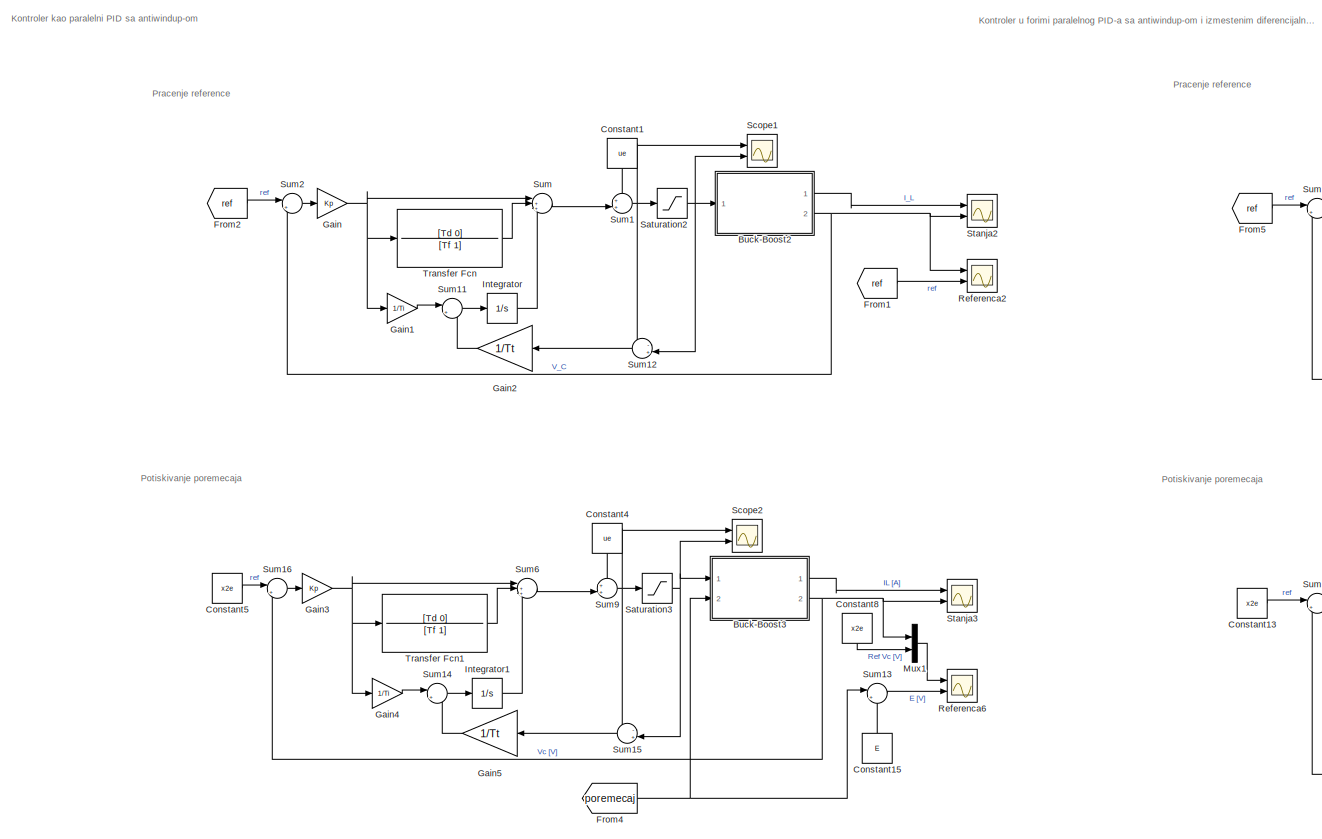
[diagram: root canvas - part 1/3, center side, full height]
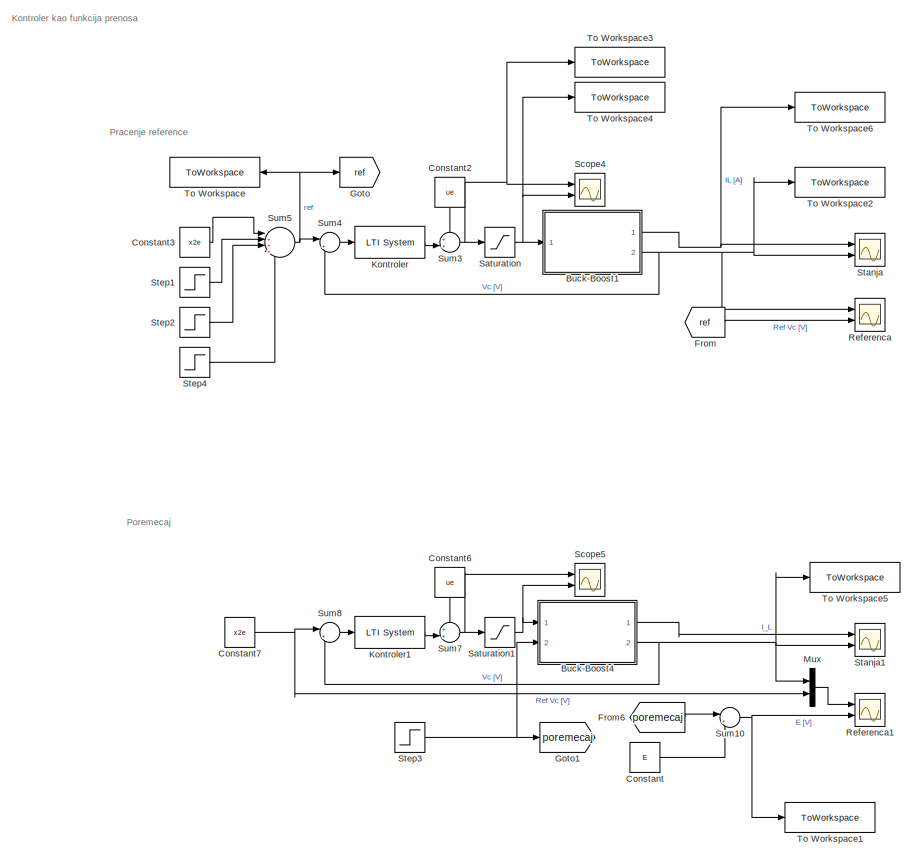
[diagram: root canvas - part 2/3, left side, full height]
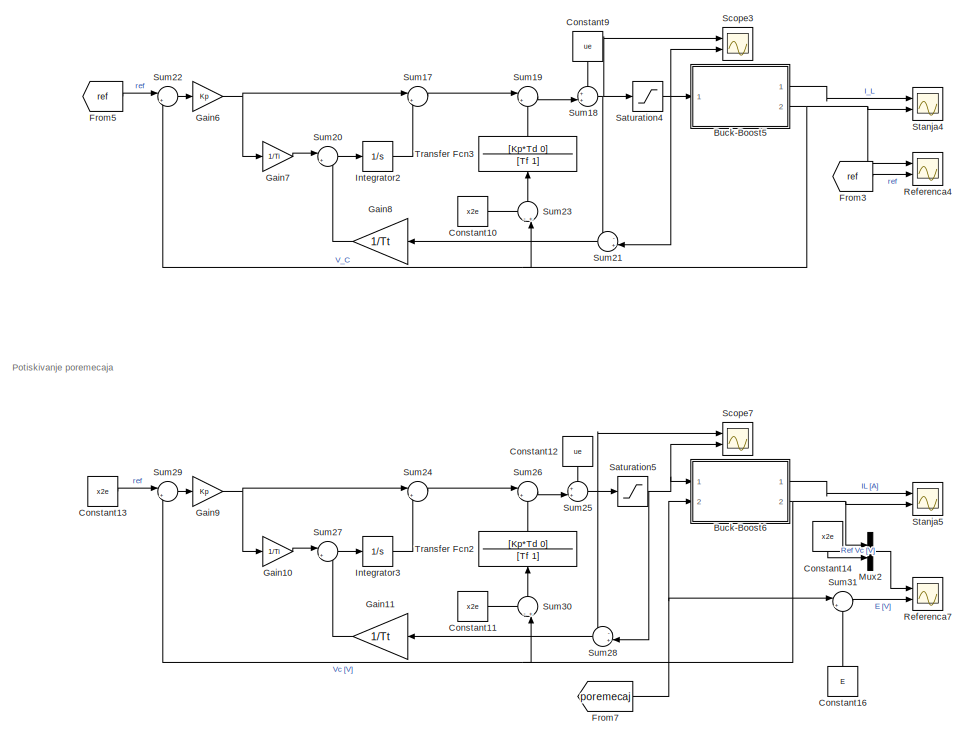
[diagram: root canvas - part 3/3, right side, full height]
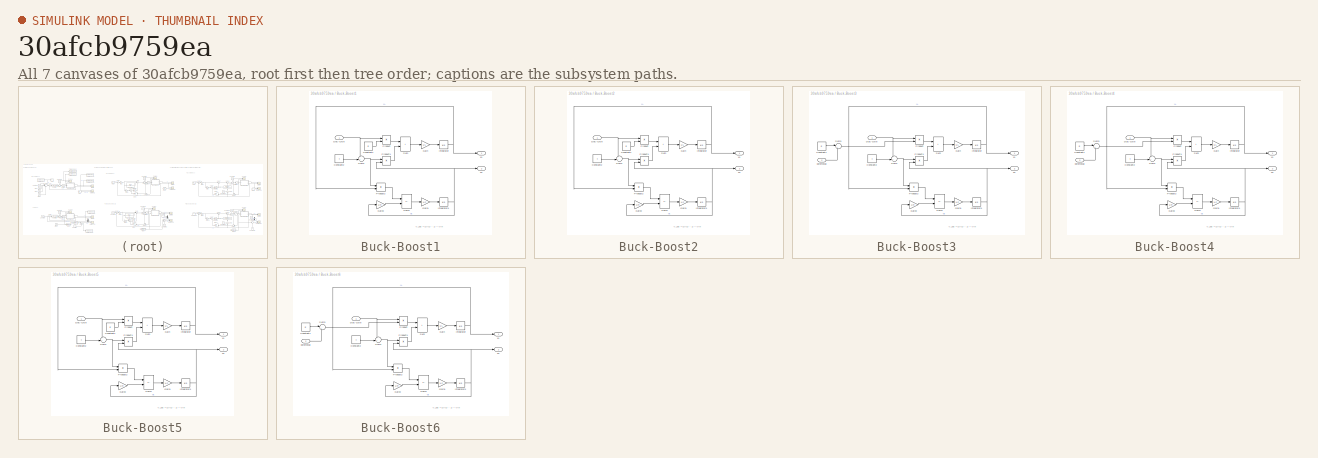
[diagram: thumbnail index - all 7 canvases of the model, root first then tree order]
MODEL slx_30afcb9759ea
KIND model
CONFIG AbsTol = auto
CONFIG EnableMultiTasking = off
CONFIG FixedStep = 1e-4
CONFIG MaxStep = auto
CONFIG MinStep = auto
CONFIG RelTol = 1e-3
CONFIG SampleTimeConstraint = Unconstrained
CONFIG Solver = FixedStepAuto
CONFIG SolverName = FixedStepAuto
CONFIG StartTime = 0.0
CONFIG StopTime = sim_duration
BLOCK [SubSystem] Buck-Boost1
  Ports = [1, 2]
  RequestExecContextInheritance = off
BLOCK [Constant] Buck-Boost1/Constant1
  Value = E
BLOCK [Constant] Buck-Boost1/Constant2
BLOCK [Inport] Buck-Boost1/Duty cycle
BLOCK [Gain] Buck-Boost1/Gain
  Gain = 1/L
BLOCK [Gain] Buck-Boost1/Gain1
  Gain = 1/C
BLOCK [Gain] Buck-Boost1/Gain2
  Gain = 1/R
BLOCK [Integrator] Buck-Boost1/Integrator
  Ports = [1, 1]
BLOCK [Integrator] Buck-Boost1/Integrator1
  Ports = [1, 1]
BLOCK [Product] Buck-Boost1/Product
  Ports = [2, 1]
BLOCK [Product] Buck-Boost1/Product1
  Ports = [2, 1]
BLOCK [Product] Buck-Boost1/Product2
  Ports = [2, 1]
BLOCK [Sum] Buck-Boost1/Sum
  IconShape = rectangular
  Ports = [2, 1]
BLOCK [Sum] Buck-Boost1/Sum1
  Inputs = -+|
  Ports = [2, 1]
BLOCK [Sum] Buck-Boost1/Sum2
  IconShape = rectangular
  Inputs = --
  Ports = [2, 1]
BLOCK [Outport] Buck-Boost1/x1
BLOCK [Outport] Buck-Boost1/x2
  Port = 2
BLOCK [SubSystem] Buck-Boost2
  Ports = [1, 2]
  RequestExecContextInheritance = off
BLOCK [Constant] Buck-Boost2/Constant1
  Value = E
BLOCK [Constant] Buck-Boost2/Constant2
BLOCK [Inport] Buck-Boost2/Duty cycle
BLOCK [Gain] Buck-Boost2/Gain
  Gain = 1/L
BLOCK [Gain] Buck-Boost2/Gain1
  Gain = 1/C
BLOCK [Gain] Buck-Boost2/Gain2
  Gain = 1/R
BLOCK [Integrator] Buck-Boost2/Integrator
  Ports = [1, 1]
BLOCK [Integrator] Buck-Boost2/Integrator1
  Ports = [1, 1]
BLOCK [Product] Buck-Boost2/Product
  Ports = [2, 1]
BLOCK [Product] Buck-Boost2/Product1
  Ports = [2, 1]
BLOCK [Product] Buck-Boost2/Product2
  Ports = [2, 1]
BLOCK [Sum] Buck-Boost2/Sum
  IconShape = rectangular
  Ports = [2, 1]
BLOCK [Sum] Buck-Boost2/Sum1
  Inputs = -+|
  Ports = [2, 1]
BLOCK [Sum] Buck-Boost2/Sum2
  IconShape = rectangular
  Inputs = --
  Ports = [2, 1]
BLOCK [Outport] Buck-Boost2/x1
BLOCK [Outport] Buck-Boost2/x2
  Port = 2
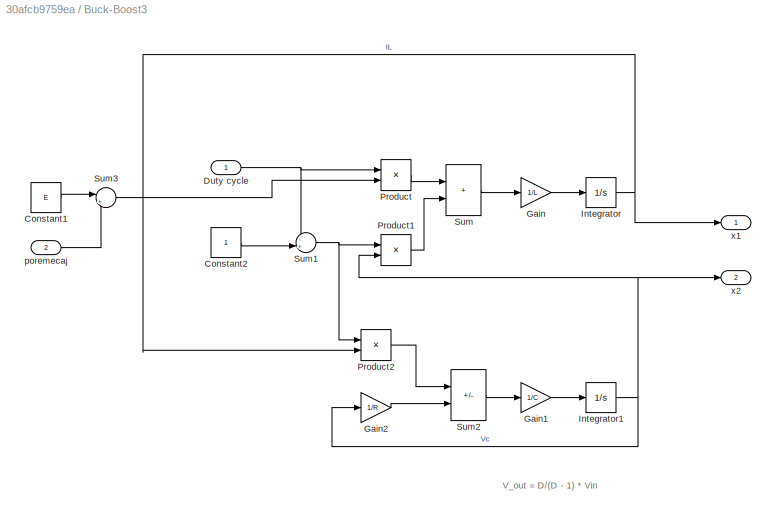
BLOCK [SubSystem] Buck-Boost3
  Ports = [2, 2]
  RequestExecContextInheritance = off
BLOCK [Constant] Buck-Boost3/Constant1
  Value = E
BLOCK [Constant] Buck-Boost3/Constant2
BLOCK [Inport] Buck-Boost3/Duty cycle
BLOCK [Gain] Buck-Boost3/Gain
  Gain = 1/L
BLOCK [Gain] Buck-Boost3/Gain1
  Gain = 1/C
BLOCK [Gain] Buck-Boost3/Gain2
  Gain = 1/R
BLOCK [Integrator] Buck-Boost3/Integrator
  Ports = [1, 1]
BLOCK [Integrator] Buck-Boost3/Integrator1
  Ports = [1, 1]
BLOCK [Product] Buck-Boost3/Product
  Ports = [2, 1]
BLOCK [Product] Buck-Boost3/Product1
  Ports = [2, 1]
BLOCK [Product] Buck-Boost3/Product2
  Ports = [2, 1]
BLOCK [Sum] Buck-Boost3/Sum
  IconShape = rectangular
  Ports = [2, 1]
BLOCK [Sum] Buck-Boost3/Sum1
  Inputs = -+|
  Ports = [2, 1]
BLOCK [Sum] Buck-Boost3/Sum2
  IconShape = rectangular
  Inputs = --
  Ports = [2, 1]
BLOCK [Sum] Buck-Boost3/Sum3
  Inputs = |++
  Ports = [2, 1]
BLOCK [Inport] Buck-Boost3/poremecaj
  Port = 2
BLOCK [Outport] Buck-Boost3/x1
BLOCK [Outport] Buck-Boost3/x2
  Port = 2
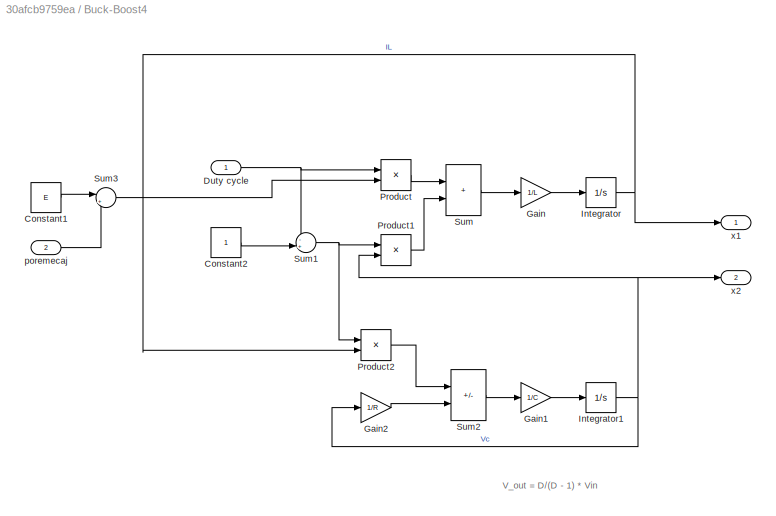
BLOCK [SubSystem] Buck-Boost4
  Ports = [2, 2]
  RequestExecContextInheritance = off
BLOCK [Constant] Buck-Boost4/Constant1
  Value = E
BLOCK [Constant] Buck-Boost4/Constant2
BLOCK [Inport] Buck-Boost4/Duty cycle
BLOCK [Gain] Buck-Boost4/Gain
  Gain = 1/L
BLOCK [Gain] Buck-Boost4/Gain1
  Gain = 1/C
BLOCK [Gain] Buck-Boost4/Gain2
  Gain = 1/R
BLOCK [Integrator] Buck-Boost4/Integrator
  Ports = [1, 1]
BLOCK [Integrator] Buck-Boost4/Integrator1
  Ports = [1, 1]
BLOCK [Product] Buck-Boost4/Product
  Ports = [2, 1]
BLOCK [Product] Buck-Boost4/Product1
  Ports = [2, 1]
BLOCK [Product] Buck-Boost4/Product2
  Ports = [2, 1]
BLOCK [Sum] Buck-Boost4/Sum
  IconShape = rectangular
  Ports = [2, 1]
BLOCK [Sum] Buck-Boost4/Sum1
  Inputs = -+|
  Ports = [2, 1]
BLOCK [Sum] Buck-Boost4/Sum2
  IconShape = rectangular
  Inputs = --
  Ports = [2, 1]
BLOCK [Sum] Buck-Boost4/Sum3
  Inputs = |++
  Ports = [2, 1]
BLOCK [Inport] Buck-Boost4/poremecaj
  Port = 2
BLOCK [Outport] Buck-Boost4/x1
BLOCK [Outport] Buck-Boost4/x2
  Port = 2
BLOCK [SubSystem] Buck-Boost5
  Ports = [1, 2]
  RequestExecContextInheritance = off
BLOCK [Constant] Buck-Boost5/Constant1
  Value = E
BLOCK [Constant] Buck-Boost5/Constant2
BLOCK [Inport] Buck-Boost5/Duty cycle
BLOCK [Gain] Buck-Boost5/Gain
  Gain = 1/L
BLOCK [Gain] Buck-Boost5/Gain1
  Gain = 1/C
BLOCK [Gain] Buck-Boost5/Gain2
  Gain = 1/R
BLOCK [Integrator] Buck-Boost5/Integrator
  Ports = [1, 1]
BLOCK [Integrator] Buck-Boost5/Integrator1
  Ports = [1, 1]
BLOCK [Product] Buck-Boost5/Product
  Ports = [2, 1]
BLOCK [Product] Buck-Boost5/Product1
  Ports = [2, 1]
BLOCK [Product] Buck-Boost5/Product2
  Ports = [2, 1]
BLOCK [Sum] Buck-Boost5/Sum
  IconShape = rectangular
  Ports = [2, 1]
BLOCK [Sum] Buck-Boost5/Sum1
  Inputs = -+|
  Ports = [2, 1]
BLOCK [Sum] Buck-Boost5/Sum2
  IconShape = rectangular
  Inputs = --
  Ports = [2, 1]
BLOCK [Outport] Buck-Boost5/x1
BLOCK [Outport] Buck-Boost5/x2
  Port = 2
BLOCK [SubSystem] Buck-Boost6
  Ports = [2, 2]
  RequestExecContextInheritance = off
BLOCK [Constant] Buck-Boost6/Constant1
  Value = E
BLOCK [Constant] Buck-Boost6/Constant2
BLOCK [Inport] Buck-Boost6/Duty cycle
BLOCK [Gain] Buck-Boost6/Gain
  Gain = 1/L
BLOCK [Gain] Buck-Boost6/Gain1
  Gain = 1/C
BLOCK [Gain] Buck-Boost6/Gain2
  Gain = 1/R
BLOCK [Integrator] Buck-Boost6/Integrator
  Ports = [1, 1]
BLOCK [Integrator] Buck-Boost6/Integrator1
  Ports = [1, 1]
BLOCK [Product] Buck-Boost6/Product
  Ports = [2, 1]
BLOCK [Product] Buck-Boost6/Product1
  Ports = [2, 1]
BLOCK [Product] Buck-Boost6/Product2
  Ports = [2, 1]
BLOCK [Sum] Buck-Boost6/Sum
  IconShape = rectangular
  Ports = [2, 1]
BLOCK [Sum] Buck-Boost6/Sum1
  Inputs = -+|
  Ports = [2, 1]
BLOCK [Sum] Buck-Boost6/Sum2
  IconShape = rectangular
  Inputs = --
  Ports = [2, 1]
BLOCK [Sum] Buck-Boost6/Sum3
  Inputs = |++
  Ports = [2, 1]
BLOCK [Inport] Buck-Boost6/poremecaj
  Port = 2
BLOCK [Outport] Buck-Boost6/x1
BLOCK [Outport] Buck-Boost6/x2
  Port = 2
BLOCK [Constant] Constant
  Value = E
BLOCK [Constant] Constant1
  NameLocation = left
  Value = ue
BLOCK [Constant] Constant10
  Value = x2e
BLOCK [Constant] Constant11
  Value = x2e
BLOCK [Constant] Constant12
  NameLocation = left
  Value = ue
BLOCK [Constant] Constant13
  Value = x2e
BLOCK [Constant] Constant14
  NameLocation = left
  Value = x2e
BLOCK [Constant] Constant15
  NameLocation = right
  Value = E
BLOCK [Constant] Constant16
  NameLocation = right
  Value = E
BLOCK [Constant] Constant2
  NameLocation = left
  Value = ue
BLOCK [Constant] Constant3
  Value = x2e
BLOCK [Constant] Constant4
  NameLocation = left
  Value = ue
BLOCK [Constant] Constant5
  Value = x2e
BLOCK [Constant] Constant6
  NameLocation = left
  Value = ue
BLOCK [Constant] Constant7
  Value = x2e
BLOCK [Constant] Constant8
  NameLocation = left
  Value = x2e
BLOCK [Constant] Constant9
  NameLocation = left
  Value = ue
BLOCK [From] From
  GotoTag = ref
BLOCK [From] From1
  GotoTag = ref
BLOCK [From] From2
  GotoTag = ref
BLOCK [From] From3
  GotoTag = ref
BLOCK [From] From4
  GotoTag = poremecaj
BLOCK [From] From5
  GotoTag = ref
BLOCK [From] From6
  GotoTag = poremecaj
BLOCK [From] From7
  GotoTag = poremecaj
BLOCK [Gain] Gain
  Gain = Kp
BLOCK [Gain] Gain1
  Gain = 1/Ti
BLOCK [Gain] Gain10
  Gain = 1/Ti
BLOCK [Gain] Gain11
  Gain = 1/Tt
  NameLocation = top
BLOCK [Gain] Gain2
  Gain = 1/Tt
  NameLocation = top
BLOCK [Gain] Gain3
  Gain = Kp
BLOCK [Gain] Gain4
  Gain = 1/Ti
BLOCK [Gain] Gain5
  Gain = 1/Tt
  NameLocation = top
BLOCK [Gain] Gain6
  Gain = Kp
BLOCK [Gain] Gain7
  Gain = 1/Ti
BLOCK [Gain] Gain8
  Gain = 1/Tt
  NameLocation = top
BLOCK [Gain] Gain9
  Gain = Kp
BLOCK [Goto] Goto
  GotoTag = ref
BLOCK [Goto] Goto1
  GotoTag = poremecaj
BLOCK [Integrator] Integrator
  Ports = [1, 1]
BLOCK [Integrator] Integrator1
  Ports = [1, 1]
BLOCK [Integrator] Integrator2
  Ports = [1, 1]
BLOCK [Integrator] Integrator3
  Ports = [1, 1]
BLOCK [Reference] Kontroler  REF=cstblocks/LTI System
  Ports = [1, 1]
  SourceBlock = cstblocks/LTI System
  SourceProductBaseCode = CT
  SourceType = LTI Block
BLOCK [Reference] Kontroler1  REF=cstblocks/LTI System
  Ports = [1, 1]
  SourceBlock = cstblocks/LTI System
  SourceProductBaseCode = CT
  SourceType = LTI Block
BLOCK [Mux] Mux
  DisplayOption = bar
  Inputs = 2
  Ports = [2, 1]
BLOCK [Mux] Mux1
  DisplayOption = bar
  Inputs = 2
  Ports = [2, 1]
BLOCK [Mux] Mux2
  DisplayOption = bar
  Inputs = 2
  Ports = [2, 1]
BLOCK [Scope] Referenca
  Floating = off
  NumInputPorts = 2
  Ports = [2]
  ScopeSpecificationString = Simulink.scopes.TimeScopeBlockCfg('CurrentConfiguration', extmgr.ConfigurationSet(extmgr.Configuration('Core','General UI',true),extmgr.Configuration('Core','Source UI',true),extmgr.Configuration('Sources','WiredSimulink',true,'DataLoggingVariableName','ScopeData2'),extmgr.Configuration('Visuals','Time Domain',true,'SerializedDisplays',{struct('MinYLimReal','-26.57813','MaxYLimReal','2.95312','YLa...<+1457ch>
BLOCK [Scope] Referenca1
  Floating = off
  NumInputPorts = 2
  Ports = [2]
  ScopeSpecificationString = Simulink.scopes.TimeScopeBlockCfg('CurrentConfiguration', extmgr.ConfigurationSet(extmgr.Configuration('Core','General UI',true),extmgr.Configuration('Core','Source UI',true),extmgr.Configuration('Sources','WiredSimulink',true,'DataLoggingVariableName','ScopeData1'),extmgr.Configuration('Visuals','Time Domain',true,'SerializedDisplays',{struct('MinYLimReal','-25.3125','MaxYLimReal','2.8125','YLabe...<+2094ch>
BLOCK [Scope] Referenca2
  Floating = off
  NumInputPorts = 2
  Ports = [2]
  ScopeSpecificationString = Simulink.scopes.TimeScopeBlockCfg('CurrentConfiguration', extmgr.ConfigurationSet(extmgr.Configuration('Core','General UI',true),extmgr.Configuration('Core','Source UI',true),extmgr.Configuration('Sources','WiredSimulink',true,'DataLoggingVariableName','ScopeData1'),extmgr.Configuration('Visuals','Time Domain',true,'SerializedDisplays',{struct('MinYLimReal','-26.93518','MaxYLimReal','2.9928','YLab...<+1445ch>
BLOCK [Scope] Referenca4
  Floating = off
  NumInputPorts = 2
  Ports = [2]
  ScopeSpecificationString = Simulink.scopes.TimeScopeBlockCfg('CurrentConfiguration', extmgr.ConfigurationSet(extmgr.Configuration('Core','General UI',true),extmgr.Configuration('Core','Source UI',true),extmgr.Configuration('Sources','WiredSimulink',true,'DataLoggingVariableName','ScopeData1'),extmgr.Configuration('Visuals','Time Domain',true,'SerializedDisplays',{struct('MinYLimReal','-30.37718','MaxYLimReal','3.37524','YLa...<+1450ch>
BLOCK [Scope] Referenca6
  Floating = off
  NumInputPorts = 2
  Ports = [2]
  ScopeSpecificationString = Simulink.scopes.TimeScopeBlockCfg('CurrentConfiguration', extmgr.ConfigurationSet(extmgr.Configuration('Core','General UI',true),extmgr.Configuration('Core','Source UI',true),extmgr.Configuration('Sources','WiredSimulink',true,'DataLoggingVariableName','ScopeData1'),extmgr.Configuration('Visuals','Time Domain',true,'SerializedDisplays',{struct('MinYLimReal','-57.38007','MaxYLimReal','6.37556','YLa...<+2087ch>
BLOCK [Scope] Referenca7
  Floating = off
  NumInputPorts = 2
  Ports = [2]
  ScopeSpecificationString = Simulink.scopes.TimeScopeBlockCfg('CurrentConfiguration', extmgr.ConfigurationSet(extmgr.Configuration('Core','General UI',true),extmgr.Configuration('Core','Source UI',true),extmgr.Configuration('Sources','WiredSimulink',true,'DataLoggingVariableName','ScopeData2'),extmgr.Configuration('Visuals','Time Domain',true,'SerializedDisplays',{struct('MinYLimReal','-57.38007','MaxYLimReal','6.37556','YLa...<+2087ch>
BLOCK [Saturate] Saturation
  LowerLimit = 0
  UpperLimit = 1
BLOCK [Saturate] Saturation1
  LowerLimit = 0
  UpperLimit = 1
BLOCK [Saturate] Saturation2
  LowerLimit = 0
  UpperLimit = 1
BLOCK [Saturate] Saturation3
  LowerLimit = 0
  UpperLimit = 1
BLOCK [Saturate] Saturation4
  LowerLimit = 0
  UpperLimit = 1
BLOCK [Saturate] Saturation5
  LowerLimit = 0
  UpperLimit = 1
BLOCK [Scope] Scope1
  Floating = off
  NumInputPorts = 2
  Ports = [2]
  ScopeSpecificationString = Simulink.scopes.TimeScopeBlockCfg('CurrentConfiguration', extmgr.ConfigurationSet(extmgr.Configuration('Core','General UI',true),extmgr.Configuration('Core','Source UI',true),extmgr.Configuration('Sources','WiredSimulink',true,'DataLoggingVariableName','ScopeData2'),extmgr.Configuration('Visuals','Time Domain',true,'SerializedDisplays',{struct('MinYLimReal','-0.01389','MaxYLimReal','3.9001','YLabe...<+1417ch>
BLOCK [Scope] Scope2
  Floating = off
  NumInputPorts = 2
  Ports = [2]
  ScopeSpecificationString = Simulink.scopes.TimeScopeBlockCfg('CurrentConfiguration', extmgr.ConfigurationSet(extmgr.Configuration('Core','General UI',true),extmgr.Configuration('Core','Source UI',true),extmgr.Configuration('Sources','WiredSimulink',true,'DataLoggingVariableName','ScopeData5'),extmgr.Configuration('Visuals','Time Domain',true,'SerializedDisplays',{struct('MinYLimReal','-22.31565','MaxYLimReal','195.08207','Y...<+1431ch>
BLOCK [Scope] Scope3
  Floating = off
  NumInputPorts = 2
  Ports = [2]
  ScopeSpecificationString = Simulink.scopes.TimeScopeBlockCfg('CurrentConfiguration', extmgr.ConfigurationSet(extmgr.Configuration('Core','General UI',true),extmgr.Configuration('Core','Source UI',true),extmgr.Configuration('Sources','WiredSimulink',true,'DataLoggingVariableName','ScopeData2'),extmgr.Configuration('Visuals','Time Domain',true,'SerializedDisplays',{struct('MinYLimReal','-0.00108','MaxYLimReal','2.15647','YLab...<+1422ch>
BLOCK [Scope] Scope4
  Floating = off
  NumInputPorts = 2
  Ports = [2]
  ScopeSpecificationString = Simulink.scopes.TimeScopeBlockCfg('CurrentConfiguration', extmgr.ConfigurationSet(extmgr.Configuration('Core','General UI',true),extmgr.Configuration('Core','Source UI',true),extmgr.Configuration('Sources','WiredSimulink',true,'DataLoggingVariableName','ScopeData3'),extmgr.Configuration('Visuals','Time Domain',true,'SerializedDisplays',{struct('MinYLimReal','-0.01389','MaxYLimReal','3.9001','YLabe...<+1416ch>
BLOCK [Scope] Scope5
  Floating = off
  NumInputPorts = 2
  Ports = [2]
  ScopeSpecificationString = Simulink.scopes.TimeScopeBlockCfg('CurrentConfiguration', extmgr.ConfigurationSet(extmgr.Configuration('Core','General UI',true),extmgr.Configuration('Core','Source UI',true),extmgr.Configuration('Sources','WiredSimulink',true,'DataLoggingVariableName','ScopeData2'),extmgr.Configuration('Visuals','Time Domain',true,'SerializedDisplays',{struct('MinYLimReal','0.5077','MaxYLimReal','0.77377','YLabel...<+1397ch>
BLOCK [Scope] Scope7
  Floating = off
  NumInputPorts = 2
  Ports = [2]
  ScopeSpecificationString = Simulink.scopes.TimeScopeBlockCfg('CurrentConfiguration', extmgr.ConfigurationSet(extmgr.Configuration('Core','General UI',true),extmgr.Configuration('Core','Source UI',true),extmgr.Configuration('Sources','WiredSimulink',true,'DataLoggingVariableName','ScopeData3'),extmgr.Configuration('Visuals','Time Domain',true,'SerializedDisplays',{struct('MinYLimReal','-0.00108','MaxYLimReal','2.15647','YLab...<+1422ch>
BLOCK [Scope] Stanja
  Floating = off
  NumInputPorts = 2
  Ports = [2]
  ScopeSpecificationString = Simulink.scopes.TimeScopeBlockCfg('CurrentConfiguration', extmgr.ConfigurationSet(extmgr.Configuration('Core','General UI',true),extmgr.Configuration('Core','Source UI',true),extmgr.Configuration('Sources','WiredSimulink',true,'DataLoggingVariableName','ScopeData1'),extmgr.Configuration('Visuals','Time Domain',true,'SerializedDisplays',{struct('MinYLimReal','-10.64085','MaxYLimReal','9.70726','YLa...<+1420ch>
BLOCK [Scope] Stanja1
  Floating = off
  NumInputPorts = 2
  Ports = [2]
  ScopeSpecificationString = Simulink.scopes.TimeScopeBlockCfg('CurrentConfiguration', extmgr.ConfigurationSet(extmgr.Configuration('Core','General UI',true),extmgr.Configuration('Core','Source UI',true),extmgr.Configuration('Sources','WiredSimulink',true,'DataLoggingVariableName','ScopeData3'),extmgr.Configuration('Visuals','Time Domain',true,'SerializedDisplays',{struct('MinYLimReal','-57.65482','MaxYLimReal','15.04043','YL...<+1416ch>
BLOCK [Scope] Stanja2
  Floating = off
  NumInputPorts = 2
  Ports = [2]
  ScopeSpecificationString = Simulink.scopes.TimeScopeBlockCfg('CurrentConfiguration', extmgr.ConfigurationSet(extmgr.Configuration('Core','General UI',true),extmgr.Configuration('Core','Source UI',true),extmgr.Configuration('Sources','WiredSimulink',true,'DataLoggingVariableName','ScopeData3'),extmgr.Configuration('Visuals','Time Domain',true,'SerializedDisplays',{struct('MinYLimReal','-56.97695','MaxYLimReal','14.85675','YL...<+1416ch>
BLOCK [Scope] Stanja3
  Floating = off
  NumInputPorts = 2
  Ports = [2]
  ScopeSpecificationString = Simulink.scopes.TimeScopeBlockCfg('CurrentConfiguration', extmgr.ConfigurationSet(extmgr.Configuration('Core','General UI',true),extmgr.Configuration('Core','Source UI',true),extmgr.Configuration('Sources','WiredSimulink',true,'DataLoggingVariableName','ScopeData6'),extmgr.Configuration('Visuals','Time Domain',true,'SerializedDisplays',{struct('MinYLimReal','-57.65482','MaxYLimReal','15.04043','YL...<+1416ch>
BLOCK [Scope] Stanja4
  Floating = off
  NumInputPorts = 2
  Ports = [2]
  ScopeSpecificationString = Simulink.scopes.TimeScopeBlockCfg('CurrentConfiguration', extmgr.ConfigurationSet(extmgr.Configuration('Core','General UI',true),extmgr.Configuration('Core','Source UI',true),extmgr.Configuration('Sources','WiredSimulink',true,'DataLoggingVariableName','ScopeData3'),extmgr.Configuration('Visuals','Time Domain',true,'SerializedDisplays',{struct('MinYLimReal','-56.97695','MaxYLimReal','14.85675','YL...<+1416ch>
BLOCK [Scope] Stanja5
  Floating = off
  NumInputPorts = 2
  Ports = [2]
  ScopeSpecificationString = Simulink.scopes.TimeScopeBlockCfg('CurrentConfiguration', extmgr.ConfigurationSet(extmgr.Configuration('Core','General UI',true),extmgr.Configuration('Core','Source UI',true),extmgr.Configuration('Sources','WiredSimulink',true,'DataLoggingVariableName','ScopeData4'),extmgr.Configuration('Visuals','Time Domain',true,'SerializedDisplays',{struct('MinYLimReal','-27.67625','MaxYLimReal','4.90223','YLa...<+1414ch>
BLOCK [Step] Step1
  After = amp_ref_stepdown1
  SampleTime = 0
  Time = t_ref_stepdown1
BLOCK [Step] Step2
  After = amp_ref_stepup1
  SampleTime = 0
  Time = t_ref_stepup1
BLOCK [Step] Step3
  After = amp_poremecaj
  SampleTime = 0
  Time = t_poremecaj
BLOCK [Step] Step4
  After = amp_ref_stepdown2
  SampleTime = 0
  Time = t_ref_stepdown2
BLOCK [Sum] Sum
  Inputs = |+++
  Ports = [3, 1]
BLOCK [Sum] Sum1
  Inputs = ++|
  Ports = [2, 1]
BLOCK [Sum] Sum10
  Inputs = |++
  Ports = [2, 1]
BLOCK [Sum] Sum11
  Inputs = |++
  Ports = [2, 1]
BLOCK [Sum] Sum12
  Inputs = -+|
  Ports = [2, 1]
BLOCK [Sum] Sum13
  Inputs = |++
  Ports = [2, 1]
BLOCK [Sum] Sum14
  Inputs = |++
  Ports = [2, 1]
BLOCK [Sum] Sum15
  Inputs = -+|
  Ports = [2, 1]
BLOCK [Sum] Sum16
  Inputs = |+-
  Ports = [2, 1]
BLOCK [Sum] Sum17
  Inputs = |++
  Ports = [2, 1]
BLOCK [Sum] Sum18
  Inputs = ++|
  Ports = [2, 1]
BLOCK [Sum] Sum19
  Inputs = |+-
  Ports = [2, 1]
BLOCK [Sum] Sum2
  Inputs = |+-
  Ports = [2, 1]
BLOCK [Sum] Sum20
  Inputs = |++
  Ports = [2, 1]
BLOCK [Sum] Sum21
  Inputs = -+|
  Ports = [2, 1]
BLOCK [Sum] Sum22
  Inputs = |+-
  Ports = [2, 1]
BLOCK [Sum] Sum23
  Inputs = -+|
  NameLocation = right
  Ports = [2, 1]
BLOCK [Sum] Sum24
  Inputs = |++
  Ports = [2, 1]
BLOCK [Sum] Sum25
  Inputs = ++|
  Ports = [2, 1]
BLOCK [Sum] Sum26
  Inputs = |+-
  Ports = [2, 1]
BLOCK [Sum] Sum27
  Inputs = |++
  Ports = [2, 1]
BLOCK [Sum] Sum28
  Inputs = -+|
  Ports = [2, 1]
BLOCK [Sum] Sum29
  Inputs = |+-
  Ports = [2, 1]
BLOCK [Sum] Sum3
  Inputs = ++|
  Ports = [2, 1]
BLOCK [Sum] Sum30
  Inputs = -+|
  NameLocation = right
  Ports = [2, 1]
BLOCK [Sum] Sum31
  Inputs = |++
  Ports = [2, 1]
BLOCK [Sum] Sum4
  Inputs = |+-
  Ports = [2, 1]
BLOCK [Sum] Sum5
  Inputs = |++++
  Ports = [4, 1]
BLOCK [Sum] Sum6
  Inputs = |+++
  Ports = [3, 1]
BLOCK [Sum] Sum7
  Inputs = ++|
  Ports = [2, 1]
BLOCK [Sum] Sum8
  Inputs = |+-
  Ports = [2, 1]
BLOCK [Sum] Sum9
  Inputs = ++|
  Ports = [2, 1]
BLOCK [ToWorkspace] To Workspace
  FixptAsFi = on
  MaxDataPoints = inf
  Ports = [1]
  SampleTime = -1
  SaveFormat = Timeseries
  VariableName = referenca
BLOCK [ToWorkspace] To Workspace1
  FixptAsFi = on
  MaxDataPoints = inf
  Ports = [1]
  SampleTime = -1
  SaveFormat = Timeseries
  VariableName = poremecaj
BLOCK [ToWorkspace] To Workspace2
  FixptAsFi = on
  MaxDataPoints = inf
  Ports = [1]
  SampleTime = -1
  SaveFormat = Timeseries
  VariableName = x2
BLOCK [ToWorkspace] To Workspace3
  FixptAsFi = on
  MaxDataPoints = inf
  Ports = [1]
  SampleTime = -1
  SaveFormat = Timeseries
  VariableName = u
BLOCK [ToWorkspace] To Workspace4
  FixptAsFi = on
  MaxDataPoints = inf
  Ports = [1]
  SampleTime = -1
  SaveFormat = Timeseries
  VariableName = u_sat
BLOCK [ToWorkspace] To Workspace5
  FixptAsFi = on
  MaxDataPoints = inf
  Ports = [1]
  SampleTime = -1
  SaveFormat = Timeseries
  VariableName = x2_poremecaj
BLOCK [ToWorkspace] To Workspace6
  FixptAsFi = on
  MaxDataPoints = inf
  Ports = [1]
  SampleTime = -1
  SaveFormat = Timeseries
  VariableName = x1
BLOCK [TransferFcn] Transfer Fcn
  Denominator = [Tf 1]
  Numerator = [Td 0]
BLOCK [TransferFcn] Transfer Fcn1
  Denominator = [Tf 1]
  Numerator = [Td 0]
BLOCK [TransferFcn] Transfer Fcn2
  Denominator = [Tf 1]
  NameLocation = right
  Numerator = [Kp*Td 0]
BLOCK [TransferFcn] Transfer Fcn3
  Denominator = [Tf 1]
  NameLocation = right
  Numerator = [Kp*Td 0]
ANNOTATION (root): Kontroler kao funkcija prenosa
ANNOTATION (root): Kontroler kao paralelni PID sa antiwindup-om
ANNOTATION (root): Kontroler u forimi paralelnog PID-a sa antiwindup-om i izmestenim diferencijalnim delovanjem
ANNOTATION (root): Poremecaj
ANNOTATION (root): Potiskivanje poremecaja
ANNOTATION (root): Pracenje reference
ANNOTATION Buck-Boost1: V_out = D/(D - 1) * Vin
ANNOTATION Buck-Boost2: V_out = D/(D - 1) * Vin
ANNOTATION Buck-Boost3: V_out = D/(D - 1) * Vin
ANNOTATION Buck-Boost4: V_out = D/(D - 1) * Vin
ANNOTATION Buck-Boost5: V_out = D/(D - 1) * Vin
ANNOTATION Buck-Boost6: V_out = D/(D - 1) * Vin
LINE Buck-Boost1/Constant1:1 -> Buck-Boost1/Product:2
LINE Buck-Boost1/Constant2:1 -> Buck-Boost1/Sum1:2
NET Buck-Boost1/Duty cycle:1 -> Buck-Boost1/Product:1, Buck-Boost1/Sum1:1
LINE Buck-Boost1/Gain1:1 -> Buck-Boost1/Integrator1:1
LINE Buck-Boost1/Gain2:1 -> Buck-Boost1/Sum2:2
LINE Buck-Boost1/Gain:1 -> Buck-Boost1/Integrator:1
NET Buck-Boost1/Integrator1:1 -> Buck-Boost1/Gain2:1, Buck-Boost1/Product1:2, Buck-Boost1/x2:1
NET Buck-Boost1/Integrator:1 -> Buck-Boost1/Product2:2, Buck-Boost1/x1:1
LINE Buck-Boost1/Product1:1 -> Buck-Boost1/Sum:2
LINE Buck-Boost1/Product2:1 -> Buck-Boost1/Sum2:1
LINE Buck-Boost1/Product:1 -> Buck-Boost1/Sum:1
NET Buck-Boost1/Sum1:1 -> Buck-Boost1/Product1:1, Buck-Boost1/Product2:1
LINE Buck-Boost1/Sum2:1 -> Buck-Boost1/Gain1:1
LINE Buck-Boost1/Sum:1 -> Buck-Boost1/Gain:1
NET Buck-Boost1:1 -> Stanja:1, To Workspace6:1
NET Buck-Boost1:2 -> Referenca:1, Stanja:2, Sum4:2, To Workspace2:1
LINE Buck-Boost2/Constant1:1 -> Buck-Boost2/Product:2
LINE Buck-Boost2/Constant2:1 -> Buck-Boost2/Sum1:2
NET Buck-Boost2/Duty cycle:1 -> Buck-Boost2/Product:1, Buck-Boost2/Sum1:1
LINE Buck-Boost2/Gain1:1 -> Buck-Boost2/Integrator1:1
LINE Buck-Boost2/Gain2:1 -> Buck-Boost2/Sum2:2
LINE Buck-Boost2/Gain:1 -> Buck-Boost2/Integrator:1
NET Buck-Boost2/Integrator1:1 -> Buck-Boost2/Gain2:1, Buck-Boost2/Product1:2, Buck-Boost2/x2:1
NET Buck-Boost2/Integrator:1 -> Buck-Boost2/Product2:2, Buck-Boost2/x1:1
LINE Buck-Boost2/Product1:1 -> Buck-Boost2/Sum:2
LINE Buck-Boost2/Product2:1 -> Buck-Boost2/Sum2:1
LINE Buck-Boost2/Product:1 -> Buck-Boost2/Sum:1
NET Buck-Boost2/Sum1:1 -> Buck-Boost2/Product1:1, Buck-Boost2/Product2:1
LINE Buck-Boost2/Sum2:1 -> Buck-Boost2/Gain1:1
LINE Buck-Boost2/Sum:1 -> Buck-Boost2/Gain:1
LINE Buck-Boost2:1 -> Stanja2:1
NET Buck-Boost2:2 -> Referenca2:1, Stanja2:2, Sum2:2
LINE Buck-Boost3/Constant1:1 -> Buck-Boost3/Sum3:1
LINE Buck-Boost3/Constant2:1 -> Buck-Boost3/Sum1:2
NET Buck-Boost3/Duty cycle:1 -> Buck-Boost3/Product:1, Buck-Boost3/Sum1:1
LINE Buck-Boost3/Gain1:1 -> Buck-Boost3/Integrator1:1
LINE Buck-Boost3/Gain2:1 -> Buck-Boost3/Sum2:2
LINE Buck-Boost3/Gain:1 -> Buck-Boost3/Integrator:1
NET Buck-Boost3/Integrator1:1 -> Buck-Boost3/Gain2:1, Buck-Boost3/Product1:2, Buck-Boost3/x2:1
NET Buck-Boost3/Integrator:1 -> Buck-Boost3/Product2:2, Buck-Boost3/x1:1
LINE Buck-Boost3/Product1:1 -> Buck-Boost3/Sum:2
LINE Buck-Boost3/Product2:1 -> Buck-Boost3/Sum2:1
LINE Buck-Boost3/Product:1 -> Buck-Boost3/Sum:1
NET Buck-Boost3/Sum1:1 -> Buck-Boost3/Product1:1, Buck-Boost3/Product2:1
LINE Buck-Boost3/Sum2:1 -> Buck-Boost3/Gain1:1
LINE Buck-Boost3/Sum3:1 -> Buck-Boost3/Product:2
LINE Buck-Boost3/Sum:1 -> Buck-Boost3/Gain:1
LINE Buck-Boost3/poremecaj:1 -> Buck-Boost3/Sum3:2
LINE Buck-Boost3:1 -> Stanja3:1
NET Buck-Boost3:2 -> Mux1:1, Stanja3:2, Sum16:2
LINE Buck-Boost4/Constant1:1 -> Buck-Boost4/Sum3:1
LINE Buck-Boost4/Constant2:1 -> Buck-Boost4/Sum1:2
NET Buck-Boost4/Duty cycle:1 -> Buck-Boost4/Product:1, Buck-Boost4/Sum1:1
LINE Buck-Boost4/Gain1:1 -> Buck-Boost4/Integrator1:1
LINE Buck-Boost4/Gain2:1 -> Buck-Boost4/Sum2:2
LINE Buck-Boost4/Gain:1 -> Buck-Boost4/Integrator:1
NET Buck-Boost4/Integrator1:1 -> Buck-Boost4/Gain2:1, Buck-Boost4/Product1:2, Buck-Boost4/x2:1
NET Buck-Boost4/Integrator:1 -> Buck-Boost4/Product2:2, Buck-Boost4/x1:1
LINE Buck-Boost4/Product1:1 -> Buck-Boost4/Sum:2
LINE Buck-Boost4/Product2:1 -> Buck-Boost4/Sum2:1
LINE Buck-Boost4/Product:1 -> Buck-Boost4/Sum:1
NET Buck-Boost4/Sum1:1 -> Buck-Boost4/Product1:1, Buck-Boost4/Product2:1
LINE Buck-Boost4/Sum2:1 -> Buck-Boost4/Gain1:1
LINE Buck-Boost4/Sum3:1 -> Buck-Boost4/Product:2
LINE Buck-Boost4/Sum:1 -> Buck-Boost4/Gain:1
LINE Buck-Boost4/poremecaj:1 -> Buck-Boost4/Sum3:2
LINE Buck-Boost4:1 -> Stanja1:1
NET Buck-Boost4:2 -> Mux:1, Stanja1:2, Sum8:2, To Workspace5:1
LINE Buck-Boost5/Constant1:1 -> Buck-Boost5/Product:2
LINE Buck-Boost5/Constant2:1 -> Buck-Boost5/Sum1:2
NET Buck-Boost5/Duty cycle:1 -> Buck-Boost5/Product:1, Buck-Boost5/Sum1:1
LINE Buck-Boost5/Gain1:1 -> Buck-Boost5/Integrator1:1
LINE Buck-Boost5/Gain2:1 -> Buck-Boost5/Sum2:2
LINE Buck-Boost5/Gain:1 -> Buck-Boost5/Integrator:1
NET Buck-Boost5/Integrator1:1 -> Buck-Boost5/Gain2:1, Buck-Boost5/Product1:2, Buck-Boost5/x2:1
NET Buck-Boost5/Integrator:1 -> Buck-Boost5/Product2:2, Buck-Boost5/x1:1
LINE Buck-Boost5/Product1:1 -> Buck-Boost5/Sum:2
LINE Buck-Boost5/Product2:1 -> Buck-Boost5/Sum2:1
LINE Buck-Boost5/Product:1 -> Buck-Boost5/Sum:1
NET Buck-Boost5/Sum1:1 -> Buck-Boost5/Product1:1, Buck-Boost5/Product2:1
LINE Buck-Boost5/Sum2:1 -> Buck-Boost5/Gain1:1
LINE Buck-Boost5/Sum:1 -> Buck-Boost5/Gain:1
LINE Buck-Boost5:1 -> Stanja4:1
NET Buck-Boost5:2 -> Referenca4:1, Stanja4:2, Sum22:2, Sum23:2
LINE Buck-Boost6/Constant1:1 -> Buck-Boost6/Sum3:1
LINE Buck-Boost6/Constant2:1 -> Buck-Boost6/Sum1:2
NET Buck-Boost6/Duty cycle:1 -> Buck-Boost6/Product:1, Buck-Boost6/Sum1:1
LINE Buck-Boost6/Gain1:1 -> Buck-Boost6/Integrator1:1
LINE Buck-Boost6/Gain2:1 -> Buck-Boost6/Sum2:2
LINE Buck-Boost6/Gain:1 -> Buck-Boost6/Integrator:1
NET Buck-Boost6/Integrator1:1 -> Buck-Boost6/Gain2:1, Buck-Boost6/Product1:2, Buck-Boost6/x2:1
NET Buck-Boost6/Integrator:1 -> Buck-Boost6/Product2:2, Buck-Boost6/x1:1
LINE Buck-Boost6/Product1:1 -> Buck-Boost6/Sum:2
LINE Buck-Boost6/Product2:1 -> Buck-Boost6/Sum2:1
LINE Buck-Boost6/Product:1 -> Buck-Boost6/Sum:1
NET Buck-Boost6/Sum1:1 -> Buck-Boost6/Product1:1, Buck-Boost6/Product2:1
LINE Buck-Boost6/Sum2:1 -> Buck-Boost6/Gain1:1
LINE Buck-Boost6/Sum3:1 -> Buck-Boost6/Product:2
LINE Buck-Boost6/Sum:1 -> Buck-Boost6/Gain:1
LINE Buck-Boost6/poremecaj:1 -> Buck-Boost6/Sum3:2
LINE Buck-Boost6:1 -> Stanja5:1
NET Buck-Boost6:2 -> Mux2:1, Stanja5:2, Sum29:2, Sum30:2
LINE Constant10:1 -> Sum23:1
LINE Constant11:1 -> Sum30:1
LINE Constant12:1 -> Sum25:1
LINE Constant13:1 -> Sum29:1
LINE Constant14:1 -> Mux2:2
LINE Constant15:1 -> Sum13:2
LINE Constant16:1 -> Sum31:2
LINE Constant1:1 -> Sum1:1
LINE Constant2:1 -> Sum3:1
LINE Constant3:1 -> Sum5:1
LINE Constant4:1 -> Sum9:1
LINE Constant5:1 -> Sum16:1
LINE Constant6:1 -> Sum7:1
NET Constant7:1 -> Mux:2, Sum8:1
LINE Constant8:1 -> Mux1:2
LINE Constant9:1 -> Sum18:1
LINE Constant:1 -> Sum10:2
LINE From1:1 -> Referenca2:2
LINE From2:1 -> Sum2:1
LINE From3:1 -> Referenca4:2
NET From4:1 -> Buck-Boost3:2, Sum13:1
LINE From5:1 -> Sum22:1
LINE From6:1 -> Sum10:1
NET From7:1 -> Buck-Boost6:2, Sum31:1
LINE From:1 -> Referenca:2
LINE Gain10:1 -> Sum27:1
LINE Gain11:1 -> Sum27:2
LINE Gain1:1 -> Sum11:1
LINE Gain2:1 -> Sum11:2
NET Gain3:1 -> Gain4:1, Sum6:1, Transfer Fcn1:1
LINE Gain4:1 -> Sum14:1
LINE Gain5:1 -> Sum14:2
NET Gain6:1 -> Gain7:1, Sum17:1
LINE Gain7:1 -> Sum20:1
LINE Gain8:1 -> Sum20:2
NET Gain9:1 -> Gain10:1, Sum24:1
NET Gain:1 -> Gain1:1, Sum:1, Transfer Fcn:1
LINE Integrator1:1 -> Sum6:3
LINE Integrator2:1 -> Sum17:2
LINE Integrator3:1 -> Sum24:2
LINE Integrator:1 -> Sum:3
LINE Kontroler1:1 -> Sum7:2
LINE Kontroler:1 -> Sum3:2
LINE Mux1:1 -> Referenca6:1
LINE Mux2:1 -> Referenca7:1
LINE Mux:1 -> Referenca1:1
NET Saturation1:1 -> Buck-Boost4:1, Scope5:2
NET Saturation2:1 -> Buck-Boost2:1, Scope1:2, Sum12:2
NET Saturation3:1 -> Buck-Boost3:1, Scope2:2, Sum15:2
NET Saturation4:1 -> Buck-Boost5:1, Scope3:2, Sum21:2
NET Saturation5:1 -> Buck-Boost6:1, Scope7:2, Sum28:2
NET Saturation:1 -> Buck-Boost1:1, Scope4:2, To Workspace4:1
LINE Step1:1 -> Sum5:2
LINE Step2:1 -> Sum5:3
NET Step3:1 -> Buck-Boost4:2, Goto1:1
LINE Step4:1 -> Sum5:4
NET Sum10:1 -> Referenca1:2, To Workspace1:1
LINE Sum11:1 -> Integrator:1
LINE Sum12:1 -> Gain2:1
LINE Sum13:1 -> Referenca6:2
LINE Sum14:1 -> Integrator1:1
LINE Sum15:1 -> Gain5:1
LINE Sum16:1 -> Gain3:1
LINE Sum17:1 -> Sum19:1
NET Sum18:1 -> Saturation4:1, Scope3:1, Sum21:1
LINE Sum19:1 -> Sum18:2
NET Sum1:1 -> Saturation2:1, Scope1:1, Sum12:1
LINE Sum20:1 -> Integrator2:1
LINE Sum21:1 -> Gain8:1
LINE Sum22:1 -> Gain6:1
LINE Sum23:1 -> Transfer Fcn3:1
LINE Sum24:1 -> Sum26:1
NET Sum25:1 -> Saturation5:1, Scope7:1, Sum28:1
LINE Sum26:1 -> Sum25:2
LINE Sum27:1 -> Integrator3:1
LINE Sum28:1 -> Gain11:1
LINE Sum29:1 -> Gain9:1
LINE Sum2:1 -> Gain:1
LINE Sum30:1 -> Transfer Fcn2:1
LINE Sum31:1 -> Referenca7:2
NET Sum3:1 -> Saturation:1, Scope4:1, To Workspace3:1
LINE Sum4:1 -> Kontroler:1
NET Sum5:1 -> Goto:1, Sum4:1, To Workspace:1
LINE Sum6:1 -> Sum9:2
NET Sum7:1 -> Saturation1:1, Scope5:1
LINE Sum8:1 -> Kontroler1:1
NET Sum9:1 -> Saturation3:1, Scope2:1, Sum15:1
LINE Sum:1 -> Sum1:2
LINE Transfer Fcn1:1 -> Sum6:2
LINE Transfer Fcn2:1 -> Sum26:2
LINE Transfer Fcn3:1 -> Sum19:2
LINE Transfer Fcn:1 -> Sum:2
note: NET lines group one-source signal fan-out (src -> all destinations, sorted); 1:1 wires keep LINE
